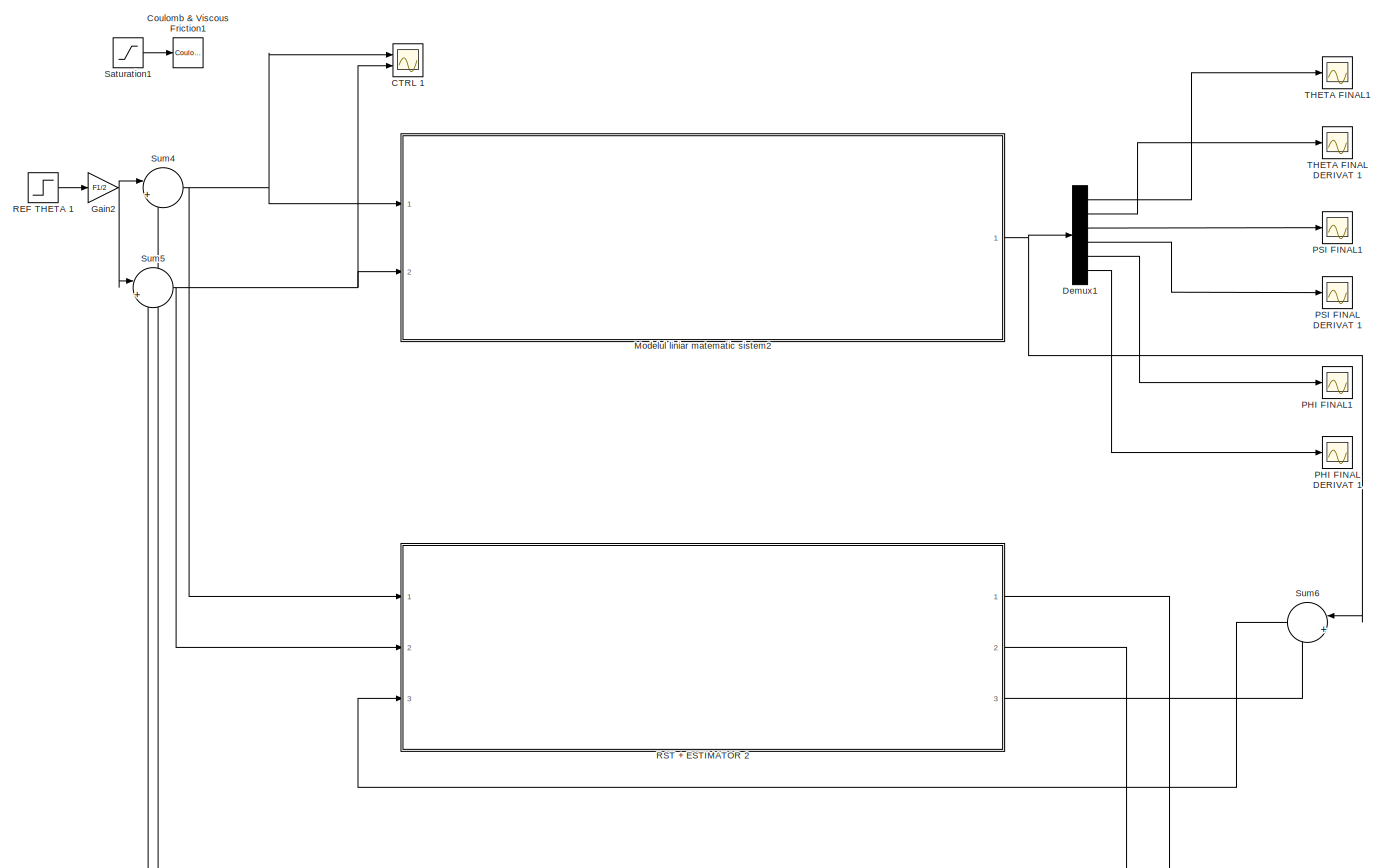
[diagram: root canvas - part 1/1, most of the canvas]
MODEL slx_1f39e415658c
KIND model
CONFIG AbsTol = auto
CONFIG EnableMultiTasking = off
CONFIG FixedStep = auto
CONFIG MaxStep = auto
CONFIG MinStep = auto
CONFIG RelTol = 1e-3
CONFIG SampleTimeConstraint = Unconstrained
CONFIG Solver = VariableStepAuto
CONFIG SolverName = VariableStepAuto
CONFIG StartTime = 0.0
CONFIG StopTime = 1
BLOCK [Scope] CTRL 1
  Floating = off
  NumInputPorts = 2
  Ports = [2]
  ScopeSpecificationString = Simulink.scopes.TimeScopeBlockCfg('CurrentConfiguration', extmgr.ConfigurationSet(extmgr.Configuration('Core','General UI',true),extmgr.Configuration('Core','Source UI',true),extmgr.Configuration('Sources','WiredSimulink',true,'DataLoggingVariableName','ScopeData1'),extmgr.Configuration('Visuals','Time Domain',true,'SerializedDisplays',{struct('MinYLimReal','-127417.39629','MaxYLimReal','32779.278...<+1480ch>
BLOCK [Reference] Coulomb & Viscous Friction1  REF=simulink/Discontinuities/Coulomb &
Viscous Friction
  Ports = [1, 1]
  SourceBlock = simulink/Discontinuities/Coulomb &\nViscous Friction
  SourceProductBaseCode = SL
  SourceProductName = Simulink
  SourceType = Coulombic and Viscous Friction
BLOCK [Demux] Demux1
  DisplayOption = bar
  Outputs = 6
  Ports = [1, 6]
BLOCK [Gain] Gain2
  Gain = F1/2
  OutDataTypeStr = Inherit: Inherit via internal rule
  ParamDataTypeStr = Inherit: Inherit via internal rule
  SaturateOnIntegerOverflow = off
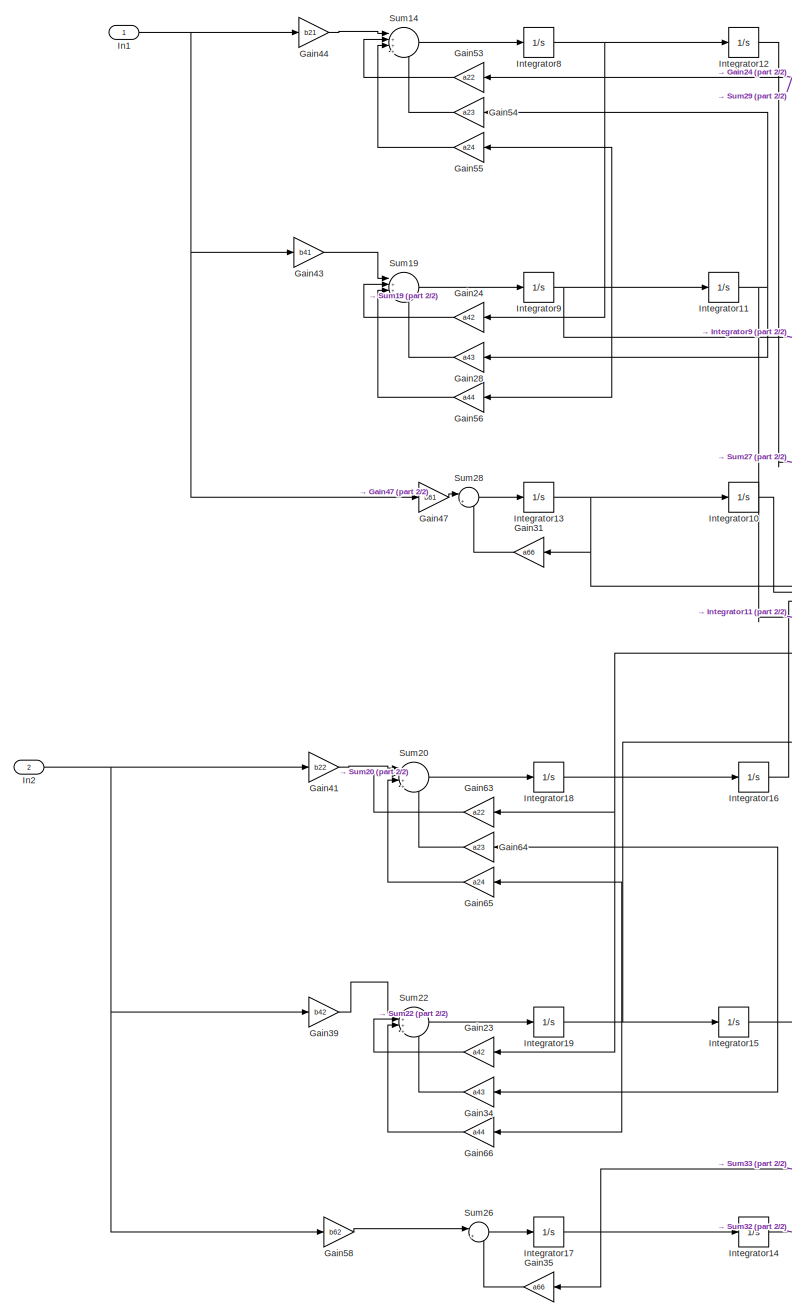
[diagram: Modelul liniar matematic sistem2 - part 1/2, left side, full height]
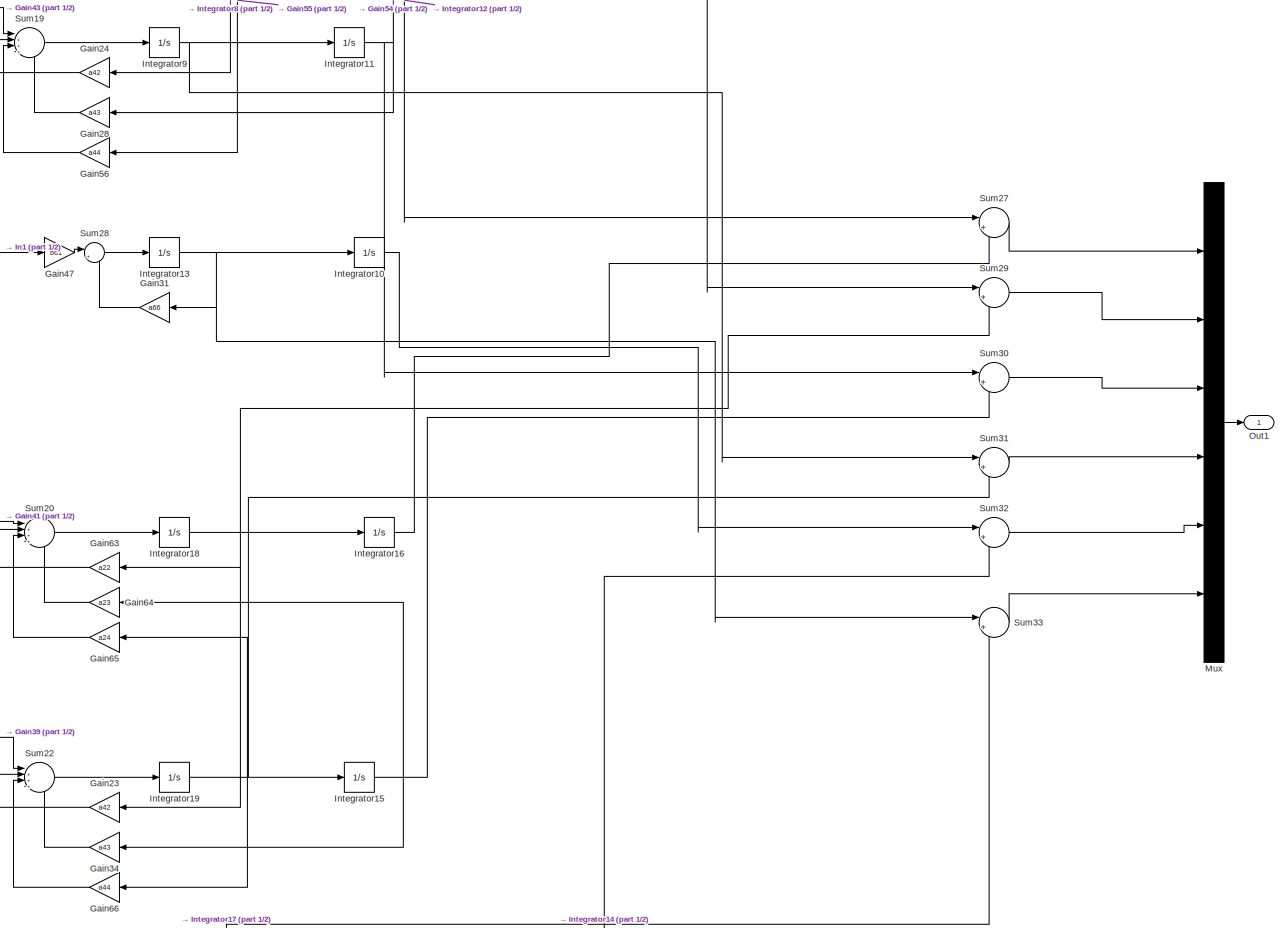
[diagram: Modelul liniar matematic sistem2 - part 2/2, full width, middle band]
BLOCK [SubSystem] Modelul liniar matematic sistem2
  Ports = [2, 1]
  RequestExecContextInheritance = off
BLOCK [Gain] Modelul liniar matematic sistem2/Gain23
  Gain = a42
  OutDataTypeStr = Inherit: Inherit via internal rule
  ParamDataTypeStr = Inherit: Inherit via internal rule
  SaturateOnIntegerOverflow = off
BLOCK [Gain] Modelul liniar matematic sistem2/Gain24
  Gain = a42
  OutDataTypeStr = Inherit: Inherit via internal rule
  ParamDataTypeStr = Inherit: Inherit via internal rule
  SaturateOnIntegerOverflow = off
BLOCK [Gain] Modelul liniar matematic sistem2/Gain28
  Gain = a43
  OutDataTypeStr = Inherit: Inherit via internal rule
  ParamDataTypeStr = Inherit: Inherit via internal rule
  SaturateOnIntegerOverflow = off
BLOCK [Gain] Modelul liniar matematic sistem2/Gain31
  Gain = a66
  OutDataTypeStr = Inherit: Inherit via internal rule
  ParamDataTypeStr = Inherit: Inherit via internal rule
  SaturateOnIntegerOverflow = off
BLOCK [Gain] Modelul liniar matematic sistem2/Gain34
  Gain = a43
  OutDataTypeStr = Inherit: Inherit via internal rule
  ParamDataTypeStr = Inherit: Inherit via internal rule
  SaturateOnIntegerOverflow = off
BLOCK [Gain] Modelul liniar matematic sistem2/Gain35
  Gain = a66
  OutDataTypeStr = Inherit: Inherit via internal rule
  ParamDataTypeStr = Inherit: Inherit via internal rule
  SaturateOnIntegerOverflow = off
BLOCK [Gain] Modelul liniar matematic sistem2/Gain39
  Gain = b42
  OutDataTypeStr = Inherit: Inherit via internal rule
  ParamDataTypeStr = Inherit: Inherit via internal rule
  SaturateOnIntegerOverflow = off
BLOCK [Gain] Modelul liniar matematic sistem2/Gain41
  Gain = b22
  OutDataTypeStr = Inherit: Inherit via internal rule
  ParamDataTypeStr = Inherit: Inherit via internal rule
  SaturateOnIntegerOverflow = off
BLOCK [Gain] Modelul liniar matematic sistem2/Gain43
  Gain = b41
  OutDataTypeStr = Inherit: Inherit via internal rule
  ParamDataTypeStr = Inherit: Inherit via internal rule
  SaturateOnIntegerOverflow = off
BLOCK [Gain] Modelul liniar matematic sistem2/Gain44
  Gain = b21
  OutDataTypeStr = Inherit: Inherit via internal rule
  ParamDataTypeStr = Inherit: Inherit via internal rule
  SaturateOnIntegerOverflow = off
BLOCK [Gain] Modelul liniar matematic sistem2/Gain47
  Gain = b61
  OutDataTypeStr = Inherit: Inherit via internal rule
  ParamDataTypeStr = Inherit: Inherit via internal rule
  SaturateOnIntegerOverflow = off
BLOCK [Gain] Modelul liniar matematic sistem2/Gain53
  Gain = a22
  OutDataTypeStr = Inherit: Inherit via internal rule
  ParamDataTypeStr = Inherit: Inherit via internal rule
  SaturateOnIntegerOverflow = off
BLOCK [Gain] Modelul liniar matematic sistem2/Gain54
  Gain = a23
  OutDataTypeStr = Inherit: Inherit via internal rule
  ParamDataTypeStr = Inherit: Inherit via internal rule
  SaturateOnIntegerOverflow = off
BLOCK [Gain] Modelul liniar matematic sistem2/Gain55
  Gain = a24
  OutDataTypeStr = Inherit: Inherit via internal rule
  ParamDataTypeStr = Inherit: Inherit via internal rule
  SaturateOnIntegerOverflow = off
BLOCK [Gain] Modelul liniar matematic sistem2/Gain56
  Gain = a44
  OutDataTypeStr = Inherit: Inherit via internal rule
  ParamDataTypeStr = Inherit: Inherit via internal rule
  SaturateOnIntegerOverflow = off
BLOCK [Gain] Modelul liniar matematic sistem2/Gain58
  Gain = b62
  OutDataTypeStr = Inherit: Inherit via internal rule
  ParamDataTypeStr = Inherit: Inherit via internal rule
  SaturateOnIntegerOverflow = off
BLOCK [Gain] Modelul liniar matematic sistem2/Gain63
  Gain = a22
  OutDataTypeStr = Inherit: Inherit via internal rule
  ParamDataTypeStr = Inherit: Inherit via internal rule
  SaturateOnIntegerOverflow = off
BLOCK [Gain] Modelul liniar matematic sistem2/Gain64
  Gain = a23
  OutDataTypeStr = Inherit: Inherit via internal rule
  ParamDataTypeStr = Inherit: Inherit via internal rule
  SaturateOnIntegerOverflow = off
BLOCK [Gain] Modelul liniar matematic sistem2/Gain65
  Gain = a24
  OutDataTypeStr = Inherit: Inherit via internal rule
  ParamDataTypeStr = Inherit: Inherit via internal rule
  SaturateOnIntegerOverflow = off
BLOCK [Gain] Modelul liniar matematic sistem2/Gain66
  Gain = a44
  OutDataTypeStr = Inherit: Inherit via internal rule
  ParamDataTypeStr = Inherit: Inherit via internal rule
  SaturateOnIntegerOverflow = off
BLOCK [Inport] Modelul liniar matematic sistem2/In1
  IconDisplay = Port number
BLOCK [Inport] Modelul liniar matematic sistem2/In2
  IconDisplay = Port number
  Port = 2
BLOCK [Integrator] Modelul liniar matematic sistem2/Integrator10
  Ports = [1, 1]
BLOCK [Integrator] Modelul liniar matematic sistem2/Integrator11
  Ports = [1, 1]
BLOCK [Integrator] Modelul liniar matematic sistem2/Integrator12
  Ports = [1, 1]
BLOCK [Integrator] Modelul liniar matematic sistem2/Integrator13
  Ports = [1, 1]
BLOCK [Integrator] Modelul liniar matematic sistem2/Integrator14
  Ports = [1, 1]
BLOCK [Integrator] Modelul liniar matematic sistem2/Integrator15
  Ports = [1, 1]
BLOCK [Integrator] Modelul liniar matematic sistem2/Integrator16
  Ports = [1, 1]
BLOCK [Integrator] Modelul liniar matematic sistem2/Integrator17
  Ports = [1, 1]
BLOCK [Integrator] Modelul liniar matematic sistem2/Integrator18
  Ports = [1, 1]
BLOCK [Integrator] Modelul liniar matematic sistem2/Integrator19
  Ports = [1, 1]
BLOCK [Integrator] Modelul liniar matematic sistem2/Integrator8
  Ports = [1, 1]
BLOCK [Integrator] Modelul liniar matematic sistem2/Integrator9
  Ports = [1, 1]
BLOCK [Mux] Modelul liniar matematic sistem2/Mux
  DisplayOption = bar
  Inputs = 6
  Ports = [6, 1]
BLOCK [Outport] Modelul liniar matematic sistem2/Out1
  IconDisplay = Port number
BLOCK [Sum] Modelul liniar matematic sistem2/Sum14
  IconShape = round
  InputSameDT = off
  Inputs = |++++
  OutDataTypeStr = Inherit: Inherit via internal rule
  Ports = [4, 1]
  SaturateOnIntegerOverflow = off
BLOCK [Sum] Modelul liniar matematic sistem2/Sum19
  IconShape = round
  InputSameDT = off
  Inputs = |++++
  OutDataTypeStr = Inherit: Inherit via internal rule
  Ports = [4, 1]
  SaturateOnIntegerOverflow = off
BLOCK [Sum] Modelul liniar matematic sistem2/Sum20
  IconShape = round
  InputSameDT = off
  Inputs = |++++
  OutDataTypeStr = Inherit: Inherit via internal rule
  Ports = [4, 1]
  SaturateOnIntegerOverflow = off
BLOCK [Sum] Modelul liniar matematic sistem2/Sum22
  IconShape = round
  InputSameDT = off
  Inputs = |++++
  OutDataTypeStr = Inherit: Inherit via internal rule
  Ports = [4, 1]
  SaturateOnIntegerOverflow = off
BLOCK [Sum] Modelul liniar matematic sistem2/Sum26
  IconShape = round
  InputSameDT = off
  Inputs = |++
  OutDataTypeStr = Inherit: Inherit via internal rule
  Ports = [2, 1]
  SaturateOnIntegerOverflow = off
BLOCK [Sum] Modelul liniar matematic sistem2/Sum27
  IconShape = round
  InputSameDT = off
  Inputs = |++
  OutDataTypeStr = Inherit: Inherit via internal rule
  Ports = [2, 1]
  SaturateOnIntegerOverflow = off
BLOCK [Sum] Modelul liniar matematic sistem2/Sum28
  IconShape = round
  InputSameDT = off
  Inputs = |++
  OutDataTypeStr = Inherit: Inherit via internal rule
  Ports = [2, 1]
  SaturateOnIntegerOverflow = off
BLOCK [Sum] Modelul liniar matematic sistem2/Sum29
  IconShape = round
  InputSameDT = off
  Inputs = |++
  OutDataTypeStr = Inherit: Inherit via internal rule
  Ports = [2, 1]
  SaturateOnIntegerOverflow = off
BLOCK [Sum] Modelul liniar matematic sistem2/Sum30
  IconShape = round
  InputSameDT = off
  Inputs = |++
  OutDataTypeStr = Inherit: Inherit via internal rule
  Ports = [2, 1]
  SaturateOnIntegerOverflow = off
BLOCK [Sum] Modelul liniar matematic sistem2/Sum31
  IconShape = round
  InputSameDT = off
  Inputs = |++
  OutDataTypeStr = Inherit: Inherit via internal rule
  Ports = [2, 1]
  SaturateOnIntegerOverflow = off
BLOCK [Sum] Modelul liniar matematic sistem2/Sum32
  IconShape = round
  InputSameDT = off
  Inputs = |++
  OutDataTypeStr = Inherit: Inherit via internal rule
  Ports = [2, 1]
  SaturateOnIntegerOverflow = off
BLOCK [Sum] Modelul liniar matematic sistem2/Sum33
  IconShape = round
  InputSameDT = off
  Inputs = |++
  OutDataTypeStr = Inherit: Inherit via internal rule
  Ports = [2, 1]
  SaturateOnIntegerOverflow = off
BLOCK [Scope] PHI FINAL DERIVAT 1
  Floating = off
  NumInputPorts = 1
  Ports = [1]
  ScopeSpecificationString = Simulink.scopes.TimeScopeBlockCfg('CurrentConfiguration', extmgr.ConfigurationSet(extmgr.Configuration('Core','General UI',true),extmgr.Configuration('Core','Source UI',true),extmgr.Configuration('Sources','WiredSimulink',true,'DataLoggingVariableName','ScopeData2'),extmgr.Configuration('Visuals','Time Domain',true,'SerializedDisplays',{struct('MinYLimReal','-2.33939','MaxYLimReal','0.93083','YLab...<+1386ch>
BLOCK [Scope] PHI FINAL1
  Floating = off
  NumInputPorts = 1
  Ports = [1]
  ScopeSpecificationString = Simulink.scopes.TimeScopeBlockCfg('CurrentConfiguration', extmgr.ConfigurationSet(extmgr.Configuration('Core','General UI',true),extmgr.Configuration('Core','Source UI',true),extmgr.Configuration('Sources','WiredSimulink',true,'DataLoggingVariableName','ScopeData3'),extmgr.Configuration('Visuals','Time Domain',true,'SerializedDisplays',{struct('MinYLimReal','-5.25141','MaxYLimReal','8.05115','YLab...<+1416ch>
BLOCK [Scope] PSI FINAL DERIVAT 1
  Floating = off
  NumInputPorts = 1
  Ports = [1]
  ScopeSpecificationString = Simulink.scopes.TimeScopeBlockCfg('CurrentConfiguration', extmgr.ConfigurationSet(extmgr.Configuration('Core','General UI',true),extmgr.Configuration('Core','Source UI',true),extmgr.Configuration('Sources','WiredSimulink',true,'DataLoggingVariableName','ScopeData4'),extmgr.Configuration('Visuals','Time Domain',true,'SerializedDisplays',{struct('MinYLimReal','-48.87518','MaxYLimReal','76.71803','YL...<+1446ch>
BLOCK [Scope] PSI FINAL1
  Floating = off
  NumInputPorts = 1
  Ports = [1]
  ScopeSpecificationString = Simulink.scopes.TimeScopeBlockCfg('CurrentConfiguration', extmgr.ConfigurationSet(extmgr.Configuration('Core','General UI',true),extmgr.Configuration('Core','Source UI',true),extmgr.Configuration('Sources','WiredSimulink',true,'DataLoggingVariableName','ScopeData5'),extmgr.Configuration('Visuals','Time Domain',true,'SerializedDisplays',{struct('MinYLimReal','-2.62104','MaxYLimReal','4.34532','YLab...<+1441ch>
BLOCK [Step] REF THETA 1
  SampleTime = 0
  Time = 0
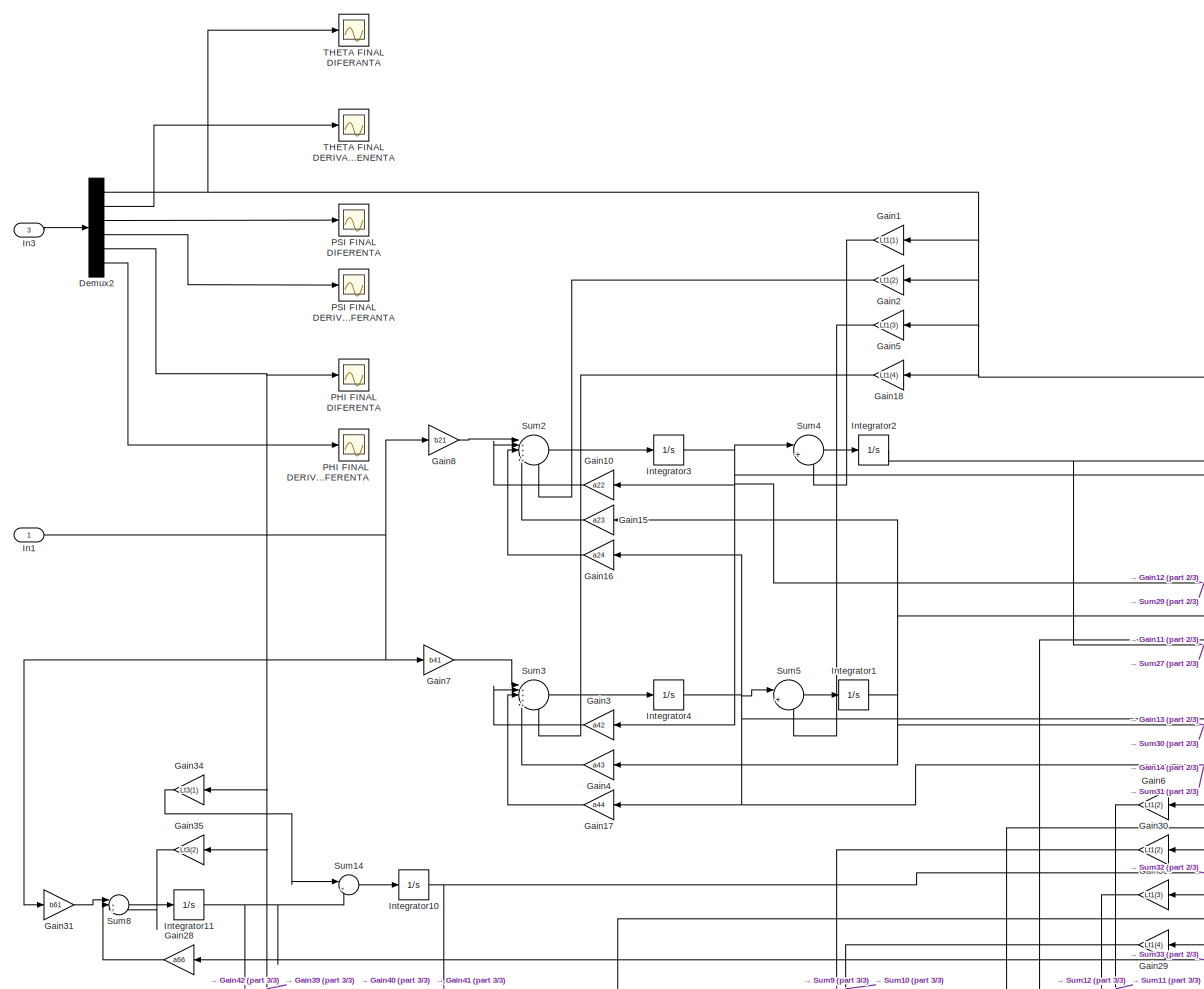
[diagram: RST + ESTIMATOR 2 - part 1/3, top left region]
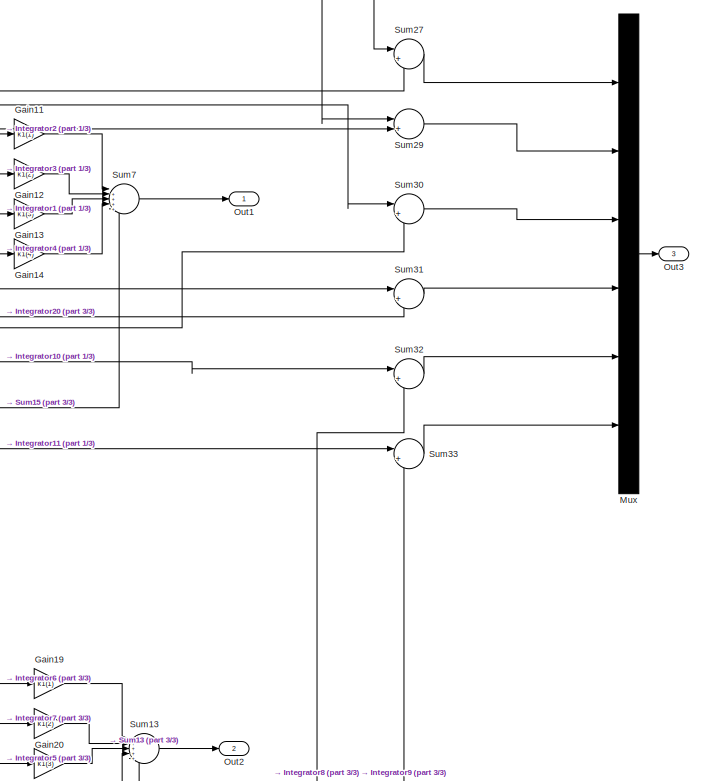
[diagram: RST + ESTIMATOR 2 - part 2/3, middle right region]
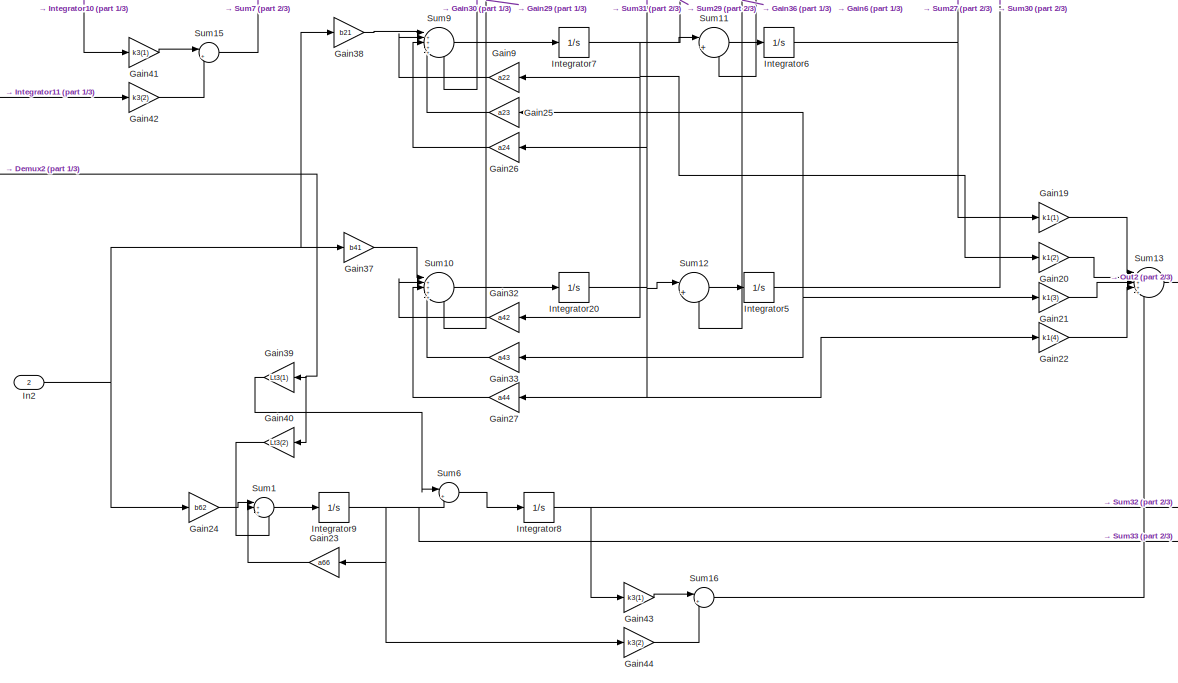
[diagram: RST + ESTIMATOR 2 - part 3/3, bottom center region]
BLOCK [SubSystem] RST + ESTIMATOR 2
  Ports = [3, 3]
  RequestExecContextInheritance = off
BLOCK [Demux] RST + ESTIMATOR 2/Demux2
  DisplayOption = bar
  Outputs = 6
  Ports = [1, 6]
BLOCK [Gain] RST + ESTIMATOR 2/Gain1
  Gain = Lt1(1)
  OutDataTypeStr = Inherit: Inherit via internal rule
  ParamDataTypeStr = Inherit: Inherit via internal rule
  SaturateOnIntegerOverflow = off
BLOCK [Gain] RST + ESTIMATOR 2/Gain10
  Gain = a22
  OutDataTypeStr = Inherit: Inherit via internal rule
  ParamDataTypeStr = Inherit: Inherit via internal rule
  SaturateOnIntegerOverflow = off
BLOCK [Gain] RST + ESTIMATOR 2/Gain11
  Gain = k1(1)
  OutDataTypeStr = Inherit: Inherit via internal rule
  ParamDataTypeStr = Inherit: Inherit via internal rule
  SaturateOnIntegerOverflow = off
BLOCK [Gain] RST + ESTIMATOR 2/Gain12
  Gain = k1(2)
  OutDataTypeStr = Inherit: Inherit via internal rule
  ParamDataTypeStr = Inherit: Inherit via internal rule
  SaturateOnIntegerOverflow = off
BLOCK [Gain] RST + ESTIMATOR 2/Gain13
  Gain = k1(3)
  OutDataTypeStr = Inherit: Inherit via internal rule
  ParamDataTypeStr = Inherit: Inherit via internal rule
  SaturateOnIntegerOverflow = off
BLOCK [Gain] RST + ESTIMATOR 2/Gain14
  Gain = k1(4)
  OutDataTypeStr = Inherit: Inherit via internal rule
  ParamDataTypeStr = Inherit: Inherit via internal rule
  SaturateOnIntegerOverflow = off
BLOCK [Gain] RST + ESTIMATOR 2/Gain15
  Gain = a23
  OutDataTypeStr = Inherit: Inherit via internal rule
  ParamDataTypeStr = Inherit: Inherit via internal rule
  SaturateOnIntegerOverflow = off
BLOCK [Gain] RST + ESTIMATOR 2/Gain16
  Gain = a24
  OutDataTypeStr = Inherit: Inherit via internal rule
  ParamDataTypeStr = Inherit: Inherit via internal rule
  SaturateOnIntegerOverflow = off
BLOCK [Gain] RST + ESTIMATOR 2/Gain17
  Gain = a44
  OutDataTypeStr = Inherit: Inherit via internal rule
  ParamDataTypeStr = Inherit: Inherit via internal rule
  SaturateOnIntegerOverflow = off
BLOCK [Gain] RST + ESTIMATOR 2/Gain18
  Gain = Lt1(4)
  OutDataTypeStr = Inherit: Inherit via internal rule
  ParamDataTypeStr = Inherit: Inherit via internal rule
  SaturateOnIntegerOverflow = off
BLOCK [Gain] RST + ESTIMATOR 2/Gain19
  Gain = k1(1)
  OutDataTypeStr = Inherit: Inherit via internal rule
  ParamDataTypeStr = Inherit: Inherit via internal rule
  SaturateOnIntegerOverflow = off
BLOCK [Gain] RST + ESTIMATOR 2/Gain2
  Gain = Lt1(2)
  OutDataTypeStr = Inherit: Inherit via internal rule
  ParamDataTypeStr = Inherit: Inherit via internal rule
  SaturateOnIntegerOverflow = off
BLOCK [Gain] RST + ESTIMATOR 2/Gain20
  Gain = k1(2)
  OutDataTypeStr = Inherit: Inherit via internal rule
  ParamDataTypeStr = Inherit: Inherit via internal rule
  SaturateOnIntegerOverflow = off
BLOCK [Gain] RST + ESTIMATOR 2/Gain21
  Gain = k1(3)
  OutDataTypeStr = Inherit: Inherit via internal rule
  ParamDataTypeStr = Inherit: Inherit via internal rule
  SaturateOnIntegerOverflow = off
BLOCK [Gain] RST + ESTIMATOR 2/Gain22
  Gain = k1(4)
  OutDataTypeStr = Inherit: Inherit via internal rule
  ParamDataTypeStr = Inherit: Inherit via internal rule
  SaturateOnIntegerOverflow = off
BLOCK [Gain] RST + ESTIMATOR 2/Gain23
  Gain = a66
  OutDataTypeStr = Inherit: Inherit via internal rule
  ParamDataTypeStr = Inherit: Inherit via internal rule
  SaturateOnIntegerOverflow = off
BLOCK [Gain] RST + ESTIMATOR 2/Gain24
  Gain = b62
  OutDataTypeStr = Inherit: Inherit via internal rule
  ParamDataTypeStr = Inherit: Inherit via internal rule
  SaturateOnIntegerOverflow = off
BLOCK [Gain] RST + ESTIMATOR 2/Gain25
  Gain = a23
  OutDataTypeStr = Inherit: Inherit via internal rule
  ParamDataTypeStr = Inherit: Inherit via internal rule
  SaturateOnIntegerOverflow = off
BLOCK [Gain] RST + ESTIMATOR 2/Gain26
  Gain = a24
  OutDataTypeStr = Inherit: Inherit via internal rule
  ParamDataTypeStr = Inherit: Inherit via internal rule
  SaturateOnIntegerOverflow = off
BLOCK [Gain] RST + ESTIMATOR 2/Gain27
  Gain = a44
  OutDataTypeStr = Inherit: Inherit via internal rule
  ParamDataTypeStr = Inherit: Inherit via internal rule
  SaturateOnIntegerOverflow = off
BLOCK [Gain] RST + ESTIMATOR 2/Gain28
  Gain = a66
  OutDataTypeStr = Inherit: Inherit via internal rule
  ParamDataTypeStr = Inherit: Inherit via internal rule
  SaturateOnIntegerOverflow = off
BLOCK [Gain] RST + ESTIMATOR 2/Gain29
  Gain = Lt1(4)
  OutDataTypeStr = Inherit: Inherit via internal rule
  ParamDataTypeStr = Inherit: Inherit via internal rule
  SaturateOnIntegerOverflow = off
BLOCK [Gain] RST + ESTIMATOR 2/Gain3
  Gain = a42
  OutDataTypeStr = Inherit: Inherit via internal rule
  ParamDataTypeStr = Inherit: Inherit via internal rule
  SaturateOnIntegerOverflow = off
BLOCK [Gain] RST + ESTIMATOR 2/Gain30
  Gain = Lt1(2)
  OutDataTypeStr = Inherit: Inherit via internal rule
  ParamDataTypeStr = Inherit: Inherit via internal rule
  SaturateOnIntegerOverflow = off
BLOCK [Gain] RST + ESTIMATOR 2/Gain31
  Gain = b61
  OutDataTypeStr = Inherit: Inherit via internal rule
  ParamDataTypeStr = Inherit: Inherit via internal rule
  SaturateOnIntegerOverflow = off
BLOCK [Gain] RST + ESTIMATOR 2/Gain32
  Gain = a42
  OutDataTypeStr = Inherit: Inherit via internal rule
  ParamDataTypeStr = Inherit: Inherit via internal rule
  SaturateOnIntegerOverflow = off
BLOCK [Gain] RST + ESTIMATOR 2/Gain33
  Gain = a43
  OutDataTypeStr = Inherit: Inherit via internal rule
  ParamDataTypeStr = Inherit: Inherit via internal rule
  SaturateOnIntegerOverflow = off
BLOCK [Gain] RST + ESTIMATOR 2/Gain34
  Gain = Lt3(1)
  OutDataTypeStr = Inherit: Inherit via internal rule
  ParamDataTypeStr = Inherit: Inherit via internal rule
  SaturateOnIntegerOverflow = off
BLOCK [Gain] RST + ESTIMATOR 2/Gain35
  Gain = Lt3(2)
  OutDataTypeStr = Inherit: Inherit via internal rule
  ParamDataTypeStr = Inherit: Inherit via internal rule
  SaturateOnIntegerOverflow = off
BLOCK [Gain] RST + ESTIMATOR 2/Gain36
  Gain = Lt1(3)
  OutDataTypeStr = Inherit: Inherit via internal rule
  ParamDataTypeStr = Inherit: Inherit via internal rule
  SaturateOnIntegerOverflow = off
BLOCK [Gain] RST + ESTIMATOR 2/Gain37
  Gain = b41
  OutDataTypeStr = Inherit: Inherit via internal rule
  ParamDataTypeStr = Inherit: Inherit via internal rule
  SaturateOnIntegerOverflow = off
BLOCK [Gain] RST + ESTIMATOR 2/Gain38
  Gain = b21
  OutDataTypeStr = Inherit: Inherit via internal rule
  ParamDataTypeStr = Inherit: Inherit via internal rule
  SaturateOnIntegerOverflow = off
BLOCK [Gain] RST + ESTIMATOR 2/Gain39
  Gain = Lt3(1)
  OutDataTypeStr = Inherit: Inherit via internal rule
  ParamDataTypeStr = Inherit: Inherit via internal rule
  SaturateOnIntegerOverflow = off
BLOCK [Gain] RST + ESTIMATOR 2/Gain4
  Gain = a43
  OutDataTypeStr = Inherit: Inherit via internal rule
  ParamDataTypeStr = Inherit: Inherit via internal rule
  SaturateOnIntegerOverflow = off
BLOCK [Gain] RST + ESTIMATOR 2/Gain40
  Gain = Lt3(2)
  OutDataTypeStr = Inherit: Inherit via internal rule
  ParamDataTypeStr = Inherit: Inherit via internal rule
  SaturateOnIntegerOverflow = off
BLOCK [Gain] RST + ESTIMATOR 2/Gain41
  Gain = k3(1)
  OutDataTypeStr = Inherit: Inherit via internal rule
  ParamDataTypeStr = Inherit: Inherit via internal rule
  SaturateOnIntegerOverflow = off
BLOCK [Gain] RST + ESTIMATOR 2/Gain42
  Gain = k3(2)
  OutDataTypeStr = Inherit: Inherit via internal rule
  ParamDataTypeStr = Inherit: Inherit via internal rule
  SaturateOnIntegerOverflow = off
BLOCK [Gain] RST + ESTIMATOR 2/Gain43
  Gain = k3(1)
  OutDataTypeStr = Inherit: Inherit via internal rule
  ParamDataTypeStr = Inherit: Inherit via internal rule
  SaturateOnIntegerOverflow = off
BLOCK [Gain] RST + ESTIMATOR 2/Gain44
  Gain = k3(2)
  OutDataTypeStr = Inherit: Inherit via internal rule
  ParamDataTypeStr = Inherit: Inherit via internal rule
  SaturateOnIntegerOverflow = off
BLOCK [Gain] RST + ESTIMATOR 2/Gain5
  Gain = Lt1(3)
  OutDataTypeStr = Inherit: Inherit via internal rule
  ParamDataTypeStr = Inherit: Inherit via internal rule
  SaturateOnIntegerOverflow = off
BLOCK [Gain] RST + ESTIMATOR 2/Gain6
  Gain = Lt1(2)
  OutDataTypeStr = Inherit: Inherit via internal rule
  ParamDataTypeStr = Inherit: Inherit via internal rule
  SaturateOnIntegerOverflow = off
BLOCK [Gain] RST + ESTIMATOR 2/Gain7
  Gain = b41
  OutDataTypeStr = Inherit: Inherit via internal rule
  ParamDataTypeStr = Inherit: Inherit via internal rule
  SaturateOnIntegerOverflow = off
BLOCK [Gain] RST + ESTIMATOR 2/Gain8
  Gain = b21
  OutDataTypeStr = Inherit: Inherit via internal rule
  ParamDataTypeStr = Inherit: Inherit via internal rule
  SaturateOnIntegerOverflow = off
BLOCK [Gain] RST + ESTIMATOR 2/Gain9
  Gain = a22
  OutDataTypeStr = Inherit: Inherit via internal rule
  ParamDataTypeStr = Inherit: Inherit via internal rule
  SaturateOnIntegerOverflow = off
BLOCK [Inport] RST + ESTIMATOR 2/In1
  IconDisplay = Port number
BLOCK [Inport] RST + ESTIMATOR 2/In2
  IconDisplay = Port number
  Port = 2
BLOCK [Inport] RST + ESTIMATOR 2/In3
  IconDisplay = Port number
  Port = 3
BLOCK [Integrator] RST + ESTIMATOR 2/Integrator1
  Ports = [1, 1]
BLOCK [Integrator] RST + ESTIMATOR 2/Integrator10
  Ports = [1, 1]
BLOCK [Integrator] RST + ESTIMATOR 2/Integrator11
  Ports = [1, 1]
BLOCK [Integrator] RST + ESTIMATOR 2/Integrator2
  Ports = [1, 1]
BLOCK [Integrator] RST + ESTIMATOR 2/Integrator20
  Ports = [1, 1]
BLOCK [Integrator] RST + ESTIMATOR 2/Integrator3
  Ports = [1, 1]
BLOCK [Integrator] RST + ESTIMATOR 2/Integrator4
  Ports = [1, 1]
BLOCK [Integrator] RST + ESTIMATOR 2/Integrator5
  Ports = [1, 1]
BLOCK [Integrator] RST + ESTIMATOR 2/Integrator6
  Ports = [1, 1]
BLOCK [Integrator] RST + ESTIMATOR 2/Integrator7
  Ports = [1, 1]
BLOCK [Integrator] RST + ESTIMATOR 2/Integrator8
  Ports = [1, 1]
BLOCK [Integrator] RST + ESTIMATOR 2/Integrator9
  Ports = [1, 1]
BLOCK [Mux] RST + ESTIMATOR 2/Mux
  DisplayOption = bar
  Inputs = 6
  Ports = [6, 1]
BLOCK [Outport] RST + ESTIMATOR 2/Out1
  IconDisplay = Port number
BLOCK [Outport] RST + ESTIMATOR 2/Out2
  IconDisplay = Port number
  Port = 2
BLOCK [Outport] RST + ESTIMATOR 2/Out3
  IconDisplay = Port number
  Port = 3
BLOCK [Scope] RST + ESTIMATOR 2/PHI FINAL DERIVAT DIFERENTA
  Floating = off
  NumInputPorts = 1
  Ports = [1]
  ScopeSpecificationString = Simulink.scopes.TimeScopeBlockCfg('CurrentConfiguration', extmgr.ConfigurationSet(extmgr.Configuration('Core','General UI',true),extmgr.Configuration('Core','Source UI',true),extmgr.Configuration('Sources','WiredSimulink',true,'DataLoggingVariableName','ScopeData1'),extmgr.Configuration('Visuals','Time Domain',true,'SerializedDisplays',{struct('MinYLimReal','-0.0000000000017','MaxYLimReal','0.0000...<+1450ch>
BLOCK [Scope] RST + ESTIMATOR 2/PHI FINAL DIFERENTA
  Floating = off
  NumInputPorts = 1
  Ports = [1]
  ScopeSpecificationString = Simulink.scopes.TimeScopeBlockCfg('CurrentConfiguration', extmgr.ConfigurationSet(extmgr.Configuration('Core','General UI',true),extmgr.Configuration('Core','Source UI',true),extmgr.Configuration('Sources','WiredSimulink',true,'DataLoggingVariableName','ScopeData2'),extmgr.Configuration('Visuals','Time Domain',true,'SerializedDisplays',{struct('MinYLimReal','-0.0000000000000012','MaxYLimReal','0.0...<+1474ch>
BLOCK [Scope] RST + ESTIMATOR 2/PSI FINAL DERIVAT DIFERANTA
  Floating = off
  NumInputPorts = 1
  Ports = [1]
  ScopeSpecificationString = Simulink.scopes.TimeScopeBlockCfg('CurrentConfiguration', extmgr.ConfigurationSet(extmgr.Configuration('Core','General UI',true),extmgr.Configuration('Core','Source UI',true),extmgr.Configuration('Sources','WiredSimulink',true,'DataLoggingVariableName','ScopeData3'),extmgr.Configuration('Visuals','Time Domain',true,'SerializedDisplays',{struct('MinYLimReal','-0.000012','MaxYLimReal','0.000007','YL...<+1448ch>
BLOCK [Scope] RST + ESTIMATOR 2/PSI FINAL DIFERENTA
  Floating = off
  NumInputPorts = 1
  Ports = [1]
  ScopeSpecificationString = Simulink.scopes.TimeScopeBlockCfg('CurrentConfiguration', extmgr.ConfigurationSet(extmgr.Configuration('Core','General UI',true),extmgr.Configuration('Core','Source UI',true),extmgr.Configuration('Sources','WiredSimulink',true,'DataLoggingVariableName','ScopeData7'),extmgr.Configuration('Visuals','Time Domain',true,'SerializedDisplays',{struct('MinYLimReal','-0.00000011','MaxYLimReal','0.00000017'...<+1466ch>
BLOCK [Sum] RST + ESTIMATOR 2/Sum1
  IconShape = round
  InputSameDT = off
  Inputs = |+++
  OutDataTypeStr = Inherit: Inherit via internal rule
  Ports = [3, 1]
  SaturateOnIntegerOverflow = off
BLOCK [Sum] RST + ESTIMATOR 2/Sum10
  IconShape = round
  InputSameDT = off
  Inputs = |+++++
  OutDataTypeStr = Inherit: Inherit via internal rule
  Ports = [5, 1]
  SaturateOnIntegerOverflow = off
BLOCK [Sum] RST + ESTIMATOR 2/Sum11
  IconShape = round
  InputSameDT = off
  Inputs = |++
  OutDataTypeStr = Inherit: Inherit via internal rule
  Ports = [2, 1]
  SaturateOnIntegerOverflow = off
BLOCK [Sum] RST + ESTIMATOR 2/Sum12
  IconShape = round
  InputSameDT = off
  Inputs = |++
  OutDataTypeStr = Inherit: Inherit via internal rule
  Ports = [2, 1]
  SaturateOnIntegerOverflow = off
BLOCK [Sum] RST + ESTIMATOR 2/Sum13
  IconShape = round
  InputSameDT = off
  Inputs = |+++++
  OutDataTypeStr = Inherit: Inherit via internal rule
  Ports = [5, 1]
  SaturateOnIntegerOverflow = off
BLOCK [Sum] RST + ESTIMATOR 2/Sum14
  IconShape = round
  InputSameDT = off
  Inputs = |++
  OutDataTypeStr = Inherit: Inherit via internal rule
  Ports = [2, 1]
  SaturateOnIntegerOverflow = off
BLOCK [Sum] RST + ESTIMATOR 2/Sum15
  IconShape = round
  InputSameDT = off
  Inputs = |++
  OutDataTypeStr = Inherit: Inherit via internal rule
  Ports = [2, 1]
  SaturateOnIntegerOverflow = off
BLOCK [Sum] RST + ESTIMATOR 2/Sum16
  IconShape = round
  InputSameDT = off
  Inputs = |++
  OutDataTypeStr = Inherit: Inherit via internal rule
  Ports = [2, 1]
  SaturateOnIntegerOverflow = off
BLOCK [Sum] RST + ESTIMATOR 2/Sum2
  IconShape = round
  InputSameDT = off
  Inputs = |+++++
  OutDataTypeStr = Inherit: Inherit via internal rule
  Ports = [5, 1]
  SaturateOnIntegerOverflow = off
BLOCK [Sum] RST + ESTIMATOR 2/Sum27
  IconShape = round
  InputSameDT = off
  Inputs = |++
  OutDataTypeStr = Inherit: Inherit via internal rule
  Ports = [2, 1]
  SaturateOnIntegerOverflow = off
BLOCK [Sum] RST + ESTIMATOR 2/Sum29
  IconShape = round
  InputSameDT = off
  Inputs = |++
  OutDataTypeStr = Inherit: Inherit via internal rule
  Ports = [2, 1]
  SaturateOnIntegerOverflow = off
BLOCK [Sum] RST + ESTIMATOR 2/Sum3
  IconShape = round
  InputSameDT = off
  Inputs = |+++++
  OutDataTypeStr = Inherit: Inherit via internal rule
  Ports = [5, 1]
  SaturateOnIntegerOverflow = off
BLOCK [Sum] RST + ESTIMATOR 2/Sum30
  IconShape = round
  InputSameDT = off
  Inputs = |++
  OutDataTypeStr = Inherit: Inherit via internal rule
  Ports = [2, 1]
  SaturateOnIntegerOverflow = off
BLOCK [Sum] RST + ESTIMATOR 2/Sum31
  IconShape = round
  InputSameDT = off
  Inputs = |++
  OutDataTypeStr = Inherit: Inherit via internal rule
  Ports = [2, 1]
  SaturateOnIntegerOverflow = off
BLOCK [Sum] RST + ESTIMATOR 2/Sum32
  IconShape = round
  InputSameDT = off
  Inputs = |++
  OutDataTypeStr = Inherit: Inherit via internal rule
  Ports = [2, 1]
  SaturateOnIntegerOverflow = off
BLOCK [Sum] RST + ESTIMATOR 2/Sum33
  IconShape = round
  InputSameDT = off
  Inputs = |++
  OutDataTypeStr = Inherit: Inherit via internal rule
  Ports = [2, 1]
  SaturateOnIntegerOverflow = off
BLOCK [Sum] RST + ESTIMATOR 2/Sum4
  IconShape = round
  InputSameDT = off
  Inputs = |++
  OutDataTypeStr = Inherit: Inherit via internal rule
  Ports = [2, 1]
  SaturateOnIntegerOverflow = off
BLOCK [Sum] RST + ESTIMATOR 2/Sum5
  IconShape = round
  InputSameDT = off
  Inputs = |++
  OutDataTypeStr = Inherit: Inherit via internal rule
  Ports = [2, 1]
  SaturateOnIntegerOverflow = off
BLOCK [Sum] RST + ESTIMATOR 2/Sum6
  IconShape = round
  InputSameDT = off
  Inputs = |++
  OutDataTypeStr = Inherit: Inherit via internal rule
  Ports = [2, 1]
  SaturateOnIntegerOverflow = off
BLOCK [Sum] RST + ESTIMATOR 2/Sum7
  IconShape = round
  InputSameDT = off
  Inputs = |+++++
  OutDataTypeStr = Inherit: Inherit via internal rule
  Ports = [5, 1]
  SaturateOnIntegerOverflow = off
BLOCK [Sum] RST + ESTIMATOR 2/Sum8
  IconShape = round
  InputSameDT = off
  Inputs = |+++
  OutDataTypeStr = Inherit: Inherit via internal rule
  Ports = [3, 1]
  SaturateOnIntegerOverflow = off
BLOCK [Sum] RST + ESTIMATOR 2/Sum9
  IconShape = round
  InputSameDT = off
  Inputs = |+++++
  OutDataTypeStr = Inherit: Inherit via internal rule
  Ports = [5, 1]
  SaturateOnIntegerOverflow = off
BLOCK [Scope] RST + ESTIMATOR 2/THETA FINAL DERIVAT DIFRENENTA
  Floating = off
  NumInputPorts = 1
  Ports = [1]
  ScopeSpecificationString = Simulink.scopes.TimeScopeBlockCfg('CurrentConfiguration', extmgr.ConfigurationSet(extmgr.Configuration('Core','General UI',true),extmgr.Configuration('Core','Source UI',true),extmgr.Configuration('Sources','WiredSimulink',true,'DataLoggingVariableName','ScopeData8'),extmgr.Configuration('Visuals','Time Domain',true,'SerializedDisplays',{struct('MinYLimReal','-0.00000011','MaxYLimReal','0.00000007'...<+1466ch>
BLOCK [Scope] RST + ESTIMATOR 2/THETA FINAL DIFERANTA
  Floating = off
  NumInputPorts = 1
  Ports = [1]
  ScopeSpecificationString = Simulink.scopes.TimeScopeBlockCfg('CurrentConfiguration', extmgr.ConfigurationSet(extmgr.Configuration('Core','General UI',true),extmgr.Configuration('Core','Source UI',true),extmgr.Configuration('Sources','WiredSimulink',true,'DataLoggingVariableName','ScopeData9'),extmgr.Configuration('Visuals','Time Domain',true,'SerializedDisplays',{struct('MinYLimReal','-0.000000000000018','MaxYLimReal','0.00...<+1522ch>
BLOCK [Saturate] Saturation1
  InputPortMap = u0
  LowerLimit = -0.6
  Ports = [1, 1]
  UpperLimit = 0.6
BLOCK [Sum] Sum4
  IconShape = round
  InputSameDT = off
  Inputs = |+-
  OutDataTypeStr = Inherit: Inherit via internal rule
  Ports = [2, 1]
  SaturateOnIntegerOverflow = off
BLOCK [Sum] Sum5
  IconShape = round
  InputSameDT = off
  Inputs = |+-
  OutDataTypeStr = Inherit: Inherit via internal rule
  Ports = [2, 1]
  SaturateOnIntegerOverflow = off
BLOCK [Sum] Sum6
  IconShape = round
  InputSameDT = off
  Inputs = |+-
  OutDataTypeStr = Inherit: Inherit via internal rule
  Ports = [2, 1]
  SaturateOnIntegerOverflow = off
BLOCK [Scope] THETA FINAL DERIVAT 1
  Floating = off
  NumInputPorts = 1
  Ports = [1]
  ScopeSpecificationString = Simulink.scopes.TimeScopeBlockCfg('CurrentConfiguration', extmgr.ConfigurationSet(extmgr.Configuration('Core','General UI',true),extmgr.Configuration('Core','Source UI',true),extmgr.Configuration('Sources','WiredSimulink',true,'DataLoggingVariableName','ScopeData6'),extmgr.Configuration('Visuals','Time Domain',true,'SerializedDisplays',{struct('MinYLimReal','-198.7607','MaxYLimReal','133.32828','Y...<+1452ch>
BLOCK [Scope] THETA FINAL1
  Floating = off
  NumInputPorts = 1
  Ports = [1]
  ScopeSpecificationString = Simulink.scopes.TimeScopeBlockCfg('CurrentConfiguration', extmgr.ConfigurationSet(extmgr.Configuration('Core','General UI',true),extmgr.Configuration('Core','Source UI',true),extmgr.Configuration('Sources','WiredSimulink',true,'DataLoggingVariableName','ScopeData7'),extmgr.Configuration('Visuals','Time Domain',true,'SerializedDisplays',{struct('MinYLimReal','-11.23273','MaxYLimReal','7.69257','YLa...<+1474ch>
LINE Demux1:1 -> THETA FINAL1:1
LINE Demux1:2 -> THETA FINAL DERIVAT 1:1
LINE Demux1:3 -> PSI FINAL1:1
LINE Demux1:4 -> PSI FINAL DERIVAT 1:1
LINE Demux1:5 -> PHI FINAL1:1
LINE Demux1:6 -> PHI FINAL DERIVAT 1:1
NET Gain2:1 -> Sum4:1, Sum5:1
LINE Modelul liniar matematic sistem2/Gain23:1 -> Modelul liniar matematic sistem2/Sum22:2
LINE Modelul liniar matematic sistem2/Gain24:1 -> Modelul liniar matematic sistem2/Sum19:2
LINE Modelul liniar matematic sistem2/Gain28:1 -> Modelul liniar matematic sistem2/Sum19:4
LINE Modelul liniar matematic sistem2/Gain31:1 -> Modelul liniar matematic sistem2/Sum28:2
LINE Modelul liniar matematic sistem2/Gain34:1 -> Modelul liniar matematic sistem2/Sum22:4
LINE Modelul liniar matematic sistem2/Gain35:1 -> Modelul liniar matematic sistem2/Sum26:2
LINE Modelul liniar matematic sistem2/Gain39:1 -> Modelul liniar matematic sistem2/Sum22:1
LINE Modelul liniar matematic sistem2/Gain41:1 -> Modelul liniar matematic sistem2/Sum20:1
LINE Modelul liniar matematic sistem2/Gain43:1 -> Modelul liniar matematic sistem2/Sum19:1
LINE Modelul liniar matematic sistem2/Gain44:1 -> Modelul liniar matematic sistem2/Sum14:1
LINE Modelul liniar matematic sistem2/Gain47:1 -> Modelul liniar matematic sistem2/Sum28:1
LINE Modelul liniar matematic sistem2/Gain53:1 -> Modelul liniar matematic sistem2/Sum14:2
LINE Modelul liniar matematic sistem2/Gain54:1 -> Modelul liniar matematic sistem2/Sum14:4
LINE Modelul liniar matematic sistem2/Gain55:1 -> Modelul liniar matematic sistem2/Sum14:3
LINE Modelul liniar matematic sistem2/Gain56:1 -> Modelul liniar matematic sistem2/Sum19:3
LINE Modelul liniar matematic sistem2/Gain58:1 -> Modelul liniar matematic sistem2/Sum26:1
LINE Modelul liniar matematic sistem2/Gain63:1 -> Modelul liniar matematic sistem2/Sum20:2
LINE Modelul liniar matematic sistem2/Gain64:1 -> Modelul liniar matematic sistem2/Sum20:4
LINE Modelul liniar matematic sistem2/Gain65:1 -> Modelul liniar matematic sistem2/Sum20:3
LINE Modelul liniar matematic sistem2/Gain66:1 -> Modelul liniar matematic sistem2/Sum22:3
NET Modelul liniar matematic sistem2/In1:1 -> Modelul liniar matematic sistem2/Gain43:1, Modelul liniar matematic sistem2/Gain44:1, Modelul liniar matematic sistem2/Gain47:1
NET Modelul liniar matematic sistem2/In2:1 -> Modelul liniar matematic sistem2/Gain39:1, Modelul liniar matematic sistem2/Gain41:1, Modelul liniar matematic sistem2/Gain58:1
LINE Modelul liniar matematic sistem2/Integrator10:1 -> Modelul liniar matematic sistem2/Sum32:1
NET Modelul liniar matematic sistem2/Integrator11:1 -> Modelul liniar matematic sistem2/Gain28:1, Modelul liniar matematic sistem2/Gain54:1, Modelul liniar matematic sistem2/Sum30:1
LINE Modelul liniar matematic sistem2/Integrator12:1 -> Modelul liniar matematic sistem2/Sum27:1
NET Modelul liniar matematic sistem2/Integrator13:1 -> Modelul liniar matematic sistem2/Gain31:1, Modelul liniar matematic sistem2/Integrator10:1, Modelul liniar matematic sistem2/Sum33:1
LINE Modelul liniar matematic sistem2/Integrator14:1 -> Modelul liniar matematic sistem2/Sum32:2
NET Modelul liniar matematic sistem2/Integrator15:1 -> Modelul liniar matematic sistem2/Gain34:1, Modelul liniar matematic sistem2/Gain64:1, Modelul liniar matematic sistem2/Sum30:2
LINE Modelul liniar matematic sistem2/Integrator16:1 -> Modelul liniar matematic sistem2/Sum27:2
NET Modelul liniar matematic sistem2/Integrator17:1 -> Modelul liniar matematic sistem2/Gain35:1, Modelul liniar matematic sistem2/Integrator14:1, Modelul liniar matematic sistem2/Sum33:2
NET Modelul liniar matematic sistem2/Integrator18:1 -> Modelul liniar matematic sistem2/Gain23:1, Modelul liniar matematic sistem2/Gain63:1, Modelul liniar matematic sistem2/Integrator16:1, Modelul liniar matematic sistem2/Sum29:2
NET Modelul liniar matematic sistem2/Integrator19:1 -> Modelul liniar matematic sistem2/Gain65:1, Modelul liniar matematic sistem2/Gain66:1, Modelul liniar matematic sistem2/Integrator15:1, Modelul liniar matematic sistem2/Sum31:2
NET Modelul liniar matematic sistem2/Integrator8:1 -> Modelul liniar matematic sistem2/Gain24:1, Modelul liniar matematic sistem2/Gain53:1, Modelul liniar matematic sistem2/Integrator12:1, Modelul liniar matematic sistem2/Sum29:1
NET Modelul liniar matematic sistem2/Integrator9:1 -> Modelul liniar matematic sistem2/Gain55:1, Modelul liniar matematic sistem2/Gain56:1, Modelul liniar matematic sistem2/Integrator11:1, Modelul liniar matematic sistem2/Sum31:1
LINE Modelul liniar matematic sistem2/Mux:1 -> Modelul liniar matematic sistem2/Out1:1
LINE Modelul liniar matematic sistem2/Sum14:1 -> Modelul liniar matematic sistem2/Integrator8:1
LINE Modelul liniar matematic sistem2/Sum19:1 -> Modelul liniar matematic sistem2/Integrator9:1
LINE Modelul liniar matematic sistem2/Sum20:1 -> Modelul liniar matematic sistem2/Integrator18:1
LINE Modelul liniar matematic sistem2/Sum22:1 -> Modelul liniar matematic sistem2/Integrator19:1
LINE Modelul liniar matematic sistem2/Sum26:1 -> Modelul liniar matematic sistem2/Integrator17:1
LINE Modelul liniar matematic sistem2/Sum27:1 -> Modelul liniar matematic sistem2/Mux:1
LINE Modelul liniar matematic sistem2/Sum28:1 -> Modelul liniar matematic sistem2/Integrator13:1
LINE Modelul liniar matematic sistem2/Sum29:1 -> Modelul liniar matematic sistem2/Mux:2
LINE Modelul liniar matematic sistem2/Sum30:1 -> Modelul liniar matematic sistem2/Mux:3
LINE Modelul liniar matematic sistem2/Sum31:1 -> Modelul liniar matematic sistem2/Mux:4
LINE Modelul liniar matematic sistem2/Sum32:1 -> Modelul liniar matematic sistem2/Mux:5
LINE Modelul liniar matematic sistem2/Sum33:1 -> Modelul liniar matematic sistem2/Mux:6
NET Modelul liniar matematic sistem2:1 -> Demux1:1, Sum6:1
LINE REF THETA 1:1 -> Gain2:1
NET RST + ESTIMATOR 2/Demux2:1 -> RST + ESTIMATOR 2/Gain18:1, RST + ESTIMATOR 2/Gain1:1, RST + ESTIMATOR 2/Gain29:1, RST + ESTIMATOR 2/Gain2:1, RST + ESTIMATOR 2/Gain30:1, RST + ESTIMATOR 2/Gain36:1, RST + ESTIMATOR 2/Gain5:1, RST + ESTIMATOR 2/Gain6:1, RST + ESTIMATOR 2/THETA FINAL DIFERANTA:1
LINE RST + ESTIMATOR 2/Demux2:2 -> RST + ESTIMATOR 2/THETA FINAL DERIVAT DIFRENENTA:1
LINE RST + ESTIMATOR 2/Demux2:3 -> RST + ESTIMATOR 2/PSI FINAL DIFERENTA:1
LINE RST + ESTIMATOR 2/Demux2:4 -> RST + ESTIMATOR 2/PSI FINAL DERIVAT DIFERANTA:1
NET RST + ESTIMATOR 2/Demux2:5 -> RST + ESTIMATOR 2/Gain34:1, RST + ESTIMATOR 2/Gain35:1, RST + ESTIMATOR 2/Gain39:1, RST + ESTIMATOR 2/Gain40:1, RST + ESTIMATOR 2/PHI FINAL DIFERENTA:1
LINE RST + ESTIMATOR 2/Demux2:6 -> RST + ESTIMATOR 2/PHI FINAL DERIVAT DIFERENTA:1
LINE RST + ESTIMATOR 2/Gain10:1 -> RST + ESTIMATOR 2/Sum2:2
LINE RST + ESTIMATOR 2/Gain11:1 -> RST + ESTIMATOR 2/Sum7:1
LINE RST + ESTIMATOR 2/Gain12:1 -> RST + ESTIMATOR 2/Sum7:2
LINE RST + ESTIMATOR 2/Gain13:1 -> RST + ESTIMATOR 2/Sum7:3
LINE RST + ESTIMATOR 2/Gain14:1 -> RST + ESTIMATOR 2/Sum7:4
LINE RST + ESTIMATOR 2/Gain15:1 -> RST + ESTIMATOR 2/Sum2:4
LINE RST + ESTIMATOR 2/Gain16:1 -> RST + ESTIMATOR 2/Sum2:3
LINE RST + ESTIMATOR 2/Gain17:1 -> RST + ESTIMATOR 2/Sum3:3
LINE RST + ESTIMATOR 2/Gain18:1 -> RST + ESTIMATOR 2/Sum3:5
LINE RST + ESTIMATOR 2/Gain19:1 -> RST + ESTIMATOR 2/Sum13:1
LINE RST + ESTIMATOR 2/Gain1:1 -> RST + ESTIMATOR 2/Sum4:2
LINE RST + ESTIMATOR 2/Gain20:1 -> RST + ESTIMATOR 2/Sum13:2
LINE RST + ESTIMATOR 2/Gain21:1 -> RST + ESTIMATOR 2/Sum13:3
LINE RST + ESTIMATOR 2/Gain22:1 -> RST + ESTIMATOR 2/Sum13:4
LINE RST + ESTIMATOR 2/Gain23:1 -> RST + ESTIMATOR 2/Sum1:2
LINE RST + ESTIMATOR 2/Gain24:1 -> RST + ESTIMATOR 2/Sum1:1
LINE RST + ESTIMATOR 2/Gain25:1 -> RST + ESTIMATOR 2/Sum9:4
LINE RST + ESTIMATOR 2/Gain26:1 -> RST + ESTIMATOR 2/Sum9:3
LINE RST + ESTIMATOR 2/Gain27:1 -> RST + ESTIMATOR 2/Sum10:3
LINE RST + ESTIMATOR 2/Gain28:1 -> RST + ESTIMATOR 2/Sum8:2
LINE RST + ESTIMATOR 2/Gain29:1 -> RST + ESTIMATOR 2/Sum10:5
LINE RST + ESTIMATOR 2/Gain2:1 -> RST + ESTIMATOR 2/Sum2:5
LINE RST + ESTIMATOR 2/Gain30:1 -> RST + ESTIMATOR 2/Sum9:5
LINE RST + ESTIMATOR 2/Gain31:1 -> RST + ESTIMATOR 2/Sum8:1
LINE RST + ESTIMATOR 2/Gain32:1 -> RST + ESTIMATOR 2/Sum10:2
LINE RST + ESTIMATOR 2/Gain33:1 -> RST + ESTIMATOR 2/Sum10:4
LINE RST + ESTIMATOR 2/Gain34:1 -> RST + ESTIMATOR 2/Sum14:1
LINE RST + ESTIMATOR 2/Gain35:1 -> RST + ESTIMATOR 2/Sum8:3
LINE RST + ESTIMATOR 2/Gain36:1 -> RST + ESTIMATOR 2/Sum12:2
LINE RST + ESTIMATOR 2/Gain37:1 -> RST + ESTIMATOR 2/Sum10:1
LINE RST + ESTIMATOR 2/Gain38:1 -> RST + ESTIMATOR 2/Sum9:1
LINE RST + ESTIMATOR 2/Gain39:1 -> RST + ESTIMATOR 2/Sum6:1
LINE RST + ESTIMATOR 2/Gain3:1 -> RST + ESTIMATOR 2/Sum3:2
LINE RST + ESTIMATOR 2/Gain40:1 -> RST + ESTIMATOR 2/Sum1:3
LINE RST + ESTIMATOR 2/Gain41:1 -> RST + ESTIMATOR 2/Sum15:1
LINE RST + ESTIMATOR 2/Gain42:1 -> RST + ESTIMATOR 2/Sum15:2
LINE RST + ESTIMATOR 2/Gain43:1 -> RST + ESTIMATOR 2/Sum16:1
LINE RST + ESTIMATOR 2/Gain44:1 -> RST + ESTIMATOR 2/Sum16:2
LINE RST + ESTIMATOR 2/Gain4:1 -> RST + ESTIMATOR 2/Sum3:4
LINE RST + ESTIMATOR 2/Gain5:1 -> RST + ESTIMATOR 2/Sum5:2
LINE RST + ESTIMATOR 2/Gain6:1 -> RST + ESTIMATOR 2/Sum11:2
LINE RST + ESTIMATOR 2/Gain7:1 -> RST + ESTIMATOR 2/Sum3:1
LINE RST + ESTIMATOR 2/Gain8:1 -> RST + ESTIMATOR 2/Sum2:1
LINE RST + ESTIMATOR 2/Gain9:1 -> RST + ESTIMATOR 2/Sum9:2
NET RST + ESTIMATOR 2/In1:1 -> RST + ESTIMATOR 2/Gain31:1, RST + ESTIMATOR 2/Gain7:1, RST + ESTIMATOR 2/Gain8:1
NET RST + ESTIMATOR 2/In2:1 -> RST + ESTIMATOR 2/Gain24:1, RST + ESTIMATOR 2/Gain37:1, RST + ESTIMATOR 2/Gain38:1
LINE RST + ESTIMATOR 2/In3:1 -> RST + ESTIMATOR 2/Demux2:1
NET RST + ESTIMATOR 2/Integrator10:1 -> RST + ESTIMATOR 2/Gain41:1, RST + ESTIMATOR 2/Sum32:1
NET RST + ESTIMATOR 2/Integrator11:1 -> RST + ESTIMATOR 2/Gain28:1, RST + ESTIMATOR 2/Gain42:1, RST + ESTIMATOR 2/Sum14:2, RST + ESTIMATOR 2/Sum33:1
NET RST + ESTIMATOR 2/Integrator1:1 -> RST + ESTIMATOR 2/Gain13:1, RST + ESTIMATOR 2/Gain15:1, RST + ESTIMATOR 2/Gain4:1, RST + ESTIMATOR 2/Sum30:1
NET RST + ESTIMATOR 2/Integrator20:1 -> RST + ESTIMATOR 2/Gain22:1, RST + ESTIMATOR 2/Gain26:1, RST + ESTIMATOR 2/Gain27:1, RST + ESTIMATOR 2/Sum12:1, RST + ESTIMATOR 2/Sum31:2
NET RST + ESTIMATOR 2/Integrator2:1 -> RST + ESTIMATOR 2/Gain11:1, RST + ESTIMATOR 2/Sum27:1
NET RST + ESTIMATOR 2/Integrator3:1 -> RST + ESTIMATOR 2/Gain10:1, RST + ESTIMATOR 2/Gain12:1, RST + ESTIMATOR 2/Gain3:1, RST + ESTIMATOR 2/Sum29:1, RST + ESTIMATOR 2/Sum4:1
NET RST + ESTIMATOR 2/Integrator4:1 -> RST + ESTIMATOR 2/Gain14:1, RST + ESTIMATOR 2/Gain16:1, RST + ESTIMATOR 2/Gain17:1, RST + ESTIMATOR 2/Sum31:1, RST + ESTIMATOR 2/Sum5:1
NET RST + ESTIMATOR 2/Integrator5:1 -> RST + ESTIMATOR 2/Gain21:1, RST + ESTIMATOR 2/Gain25:1, RST + ESTIMATOR 2/Gain33:1, RST + ESTIMATOR 2/Sum30:2
NET RST + ESTIMATOR 2/Integrator6:1 -> RST + ESTIMATOR 2/Gain19:1, RST + ESTIMATOR 2/Sum27:2
NET RST + ESTIMATOR 2/Integrator7:1 -> RST + ESTIMATOR 2/Gain20:1, RST + ESTIMATOR 2/Gain32:1, RST + ESTIMATOR 2/Gain9:1, RST + ESTIMATOR 2/Sum11:1, RST + ESTIMATOR 2/Sum29:2
NET RST + ESTIMATOR 2/Integrator8:1 -> RST + ESTIMATOR 2/Gain43:1, RST + ESTIMATOR 2/Sum32:2
NET RST + ESTIMATOR 2/Integrator9:1 -> RST + ESTIMATOR 2/Gain23:1, RST + ESTIMATOR 2/Gain44:1, RST + ESTIMATOR 2/Sum33:2, RST + ESTIMATOR 2/Sum6:2
LINE RST + ESTIMATOR 2/Mux:1 -> RST + ESTIMATOR 2/Out3:1
LINE RST + ESTIMATOR 2/Sum10:1 -> RST + ESTIMATOR 2/Integrator20:1
LINE RST + ESTIMATOR 2/Sum11:1 -> RST + ESTIMATOR 2/Integrator6:1
LINE RST + ESTIMATOR 2/Sum12:1 -> RST + ESTIMATOR 2/Integrator5:1
LINE RST + ESTIMATOR 2/Sum13:1 -> RST + ESTIMATOR 2/Out2:1
LINE RST + ESTIMATOR 2/Sum14:1 -> RST + ESTIMATOR 2/Integrator10:1
LINE RST + ESTIMATOR 2/Sum15:1 -> RST + ESTIMATOR 2/Sum7:5
LINE RST + ESTIMATOR 2/Sum16:1 -> RST + ESTIMATOR 2/Sum13:5
LINE RST + ESTIMATOR 2/Sum1:1 -> RST + ESTIMATOR 2/Integrator9:1
LINE RST + ESTIMATOR 2/Sum27:1 -> RST + ESTIMATOR 2/Mux:1
LINE RST + ESTIMATOR 2/Sum29:1 -> RST + ESTIMATOR 2/Mux:2
LINE RST + ESTIMATOR 2/Sum2:1 -> RST + ESTIMATOR 2/Integrator3:1
LINE RST + ESTIMATOR 2/Sum30:1 -> RST + ESTIMATOR 2/Mux:3
LINE RST + ESTIMATOR 2/Sum31:1 -> RST + ESTIMATOR 2/Mux:4
LINE RST + ESTIMATOR 2/Sum32:1 -> RST + ESTIMATOR 2/Mux:5
LINE RST + ESTIMATOR 2/Sum33:1 -> RST + ESTIMATOR 2/Mux:6
LINE RST + ESTIMATOR 2/Sum3:1 -> RST + ESTIMATOR 2/Integrator4:1
LINE RST + ESTIMATOR 2/Sum4:1 -> RST + ESTIMATOR 2/Integrator2:1
LINE RST + ESTIMATOR 2/Sum5:1 -> RST + ESTIMATOR 2/Integrator1:1
LINE RST + ESTIMATOR 2/Sum6:1 -> RST + ESTIMATOR 2/Integrator8:1
LINE RST + ESTIMATOR 2/Sum7:1 -> RST + ESTIMATOR 2/Out1:1
LINE RST + ESTIMATOR 2/Sum8:1 -> RST + ESTIMATOR 2/Integrator11:1
LINE RST + ESTIMATOR 2/Sum9:1 -> RST + ESTIMATOR 2/Integrator7:1
LINE RST + ESTIMATOR 2:1 -> Sum4:2
LINE RST + ESTIMATOR 2:2 -> Sum5:2
LINE RST + ESTIMATOR 2:3 -> Sum6:2
LINE Saturation1:1 -> Coulomb & Viscous Friction1:1
NET Sum4:1 -> CTRL 1:1, Modelul liniar matematic sistem2:1, RST + ESTIMATOR 2:1
NET Sum5:1 -> CTRL 1:2, Modelul liniar matematic sistem2:2, RST + ESTIMATOR 2:2
LINE Sum6:1 -> RST + ESTIMATOR 2:3
note: NET lines group one-source signal fan-out (src -> all destinations, sorted); 1:1 wires keep LINE
